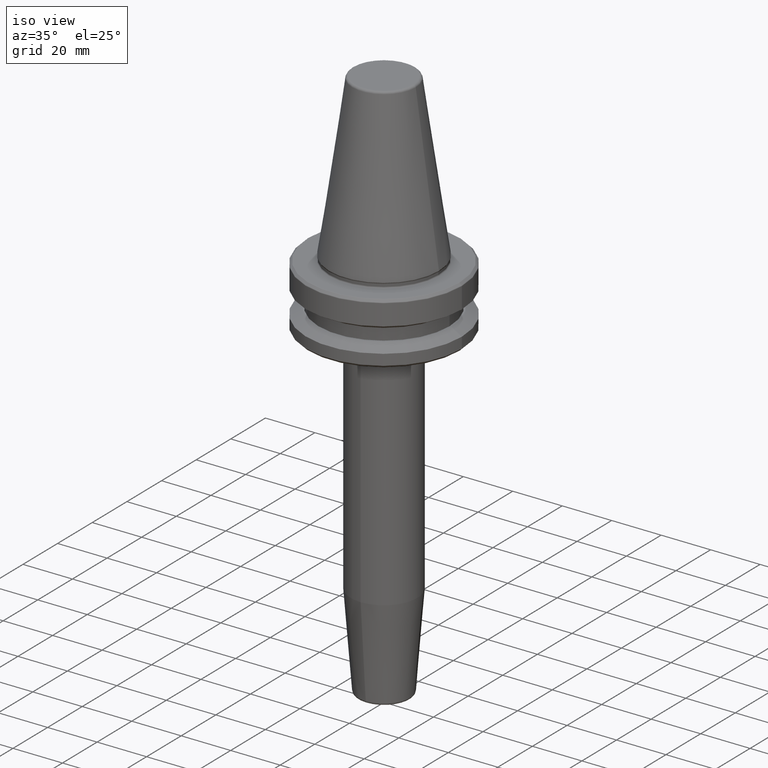
[diagram: clean part render]
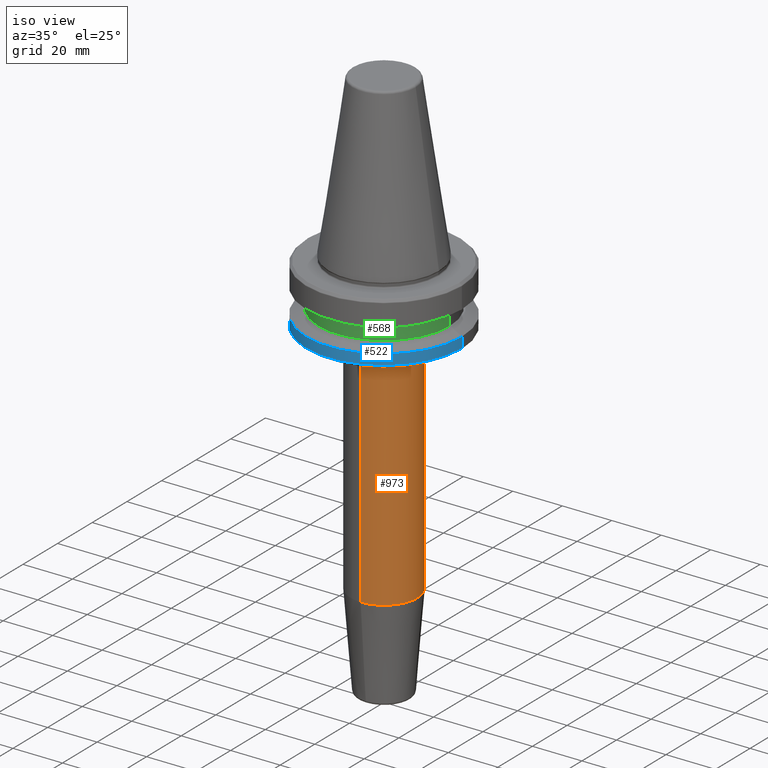
[diagram: same view with three faces highlighted in distinct colors, each labeled with its STEP entity id]
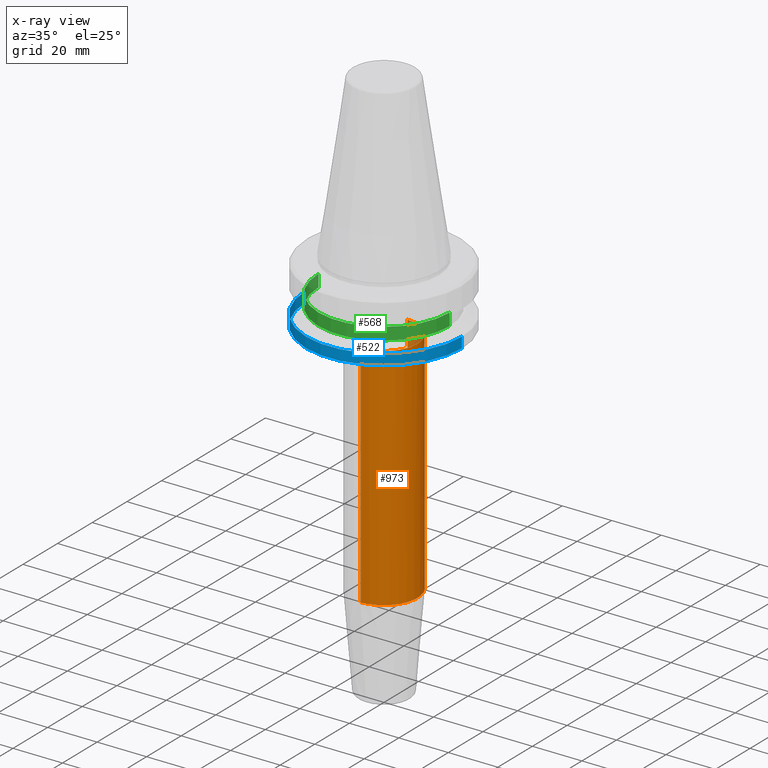
[diagram: x-ray of the same camera — body ghosted, the three highlighted faces saturated]
A machine part, iso view with three faces highlighted in distinct colors.
The next image is the same camera in x-ray (body ghosted, the three faces saturated) — at least one of them is partly hidden behind the body in this view.
Their STEP definitions:

[orange] entity #973 — the highlighted cylindrical surface (partial cylindrical patch) has radius 13.5 mm, axis along (-0, 0, -1).
#27 = CIRCLE ( 'NONE', #801, 13.49999999999999800 ) ;
#28 = DIRECTION ( 'NONE',  ( -0.0000000000000000000, 7.550453949630297200E-017, -1.000000000000000000 ) ) ;
#52 = AXIS2_PLACEMENT_3D ( 'NONE', #449, #1244, #1151 ) ;
#73 = CARTESIAN_POINT ( 'NONE',  ( 1.653273178848926700E-015, -13.49999999999998800, -160.0000000000000000 ) ) ;
#102 = LINE ( 'NONE', #992, #870 ) ;
#141 = VERTEX_POINT ( 'NONE', #726 ) ;
#146 = ORIENTED_EDGE ( 'NONE', *, *, #894, .F. ) ;
#204 = VERTEX_POINT ( 'NONE', #758 ) ;
#222 = DIRECTION ( 'NONE',  ( 0.0000000000000000000, 1.000000000000000000, 0.0000000000000000000 ) ) ;
#329 = DIRECTION ( 'NONE',  ( -0.0000000000000000000, 7.550453949630297200E-017, -1.000000000000000000 ) ) ;
#352 = DIRECTION ( 'NONE',  ( -0.0000000000000000000, 7.550453949630297200E-017, -1.000000000000000000 ) ) ;
#362 = CIRCLE ( 'NONE', #52, 13.49999999999999800 ) ;
#367 = DIRECTION ( 'NONE',  ( 0.0000000000000000000, 0.0000000000000000000, -1.000000000000000000 ) ) ;
#400 = VERTEX_POINT ( 'NONE', #1277 ) ;
#413 = CARTESIAN_POINT ( 'NONE',  ( 0.0000000000000000000, 13.49999999999999800, -28.99999999999999600 ) ) ;
#428 = ORIENTED_EDGE ( 'NONE', *, *, #1101, .T. ) ;
#449 = CARTESIAN_POINT ( 'NONE',  ( 0.0000000000000000000, 1.510090789926056700E-016, -28.99999999999999600 ) ) ;
#463 = CARTESIAN_POINT ( 'NONE',  ( 0.0000000000000000000, 7.163975340955943400E-015, -121.8813857914691400 ) ) ;
#497 = DIRECTION ( 'NONE',  ( -0.0000000000000000000, 7.550453949630297200E-017, -1.000000000000000000 ) ) ;
#510 = VERTEX_POINT ( 'NONE', #1061 ) ;
#606 = AXIS2_PLACEMENT_3D ( 'NONE', #463, #329, #1067 ) ;
#613 = VECTOR ( 'NONE', #497, 1000.000000000000000 ) ;
#629 = EDGE_CURVE ( 'NONE', #988, #400, #362, .T. ) ;
#635 = CYLINDRICAL_SURFACE ( 'NONE', #1154, 13.49999999999999800 ) ;
#638 = EDGE_CURVE ( 'NONE', #988, #141, #102, .T. ) ;
#714 = EDGE_LOOP ( 'NONE', ( #1197, #428, #1050, #146, #828 ) ) ;
#726 = CARTESIAN_POINT ( 'NONE',  ( 1.653273178848926700E-015, 13.50000000000000500, -121.8813857914691400 ) ) ;
#758 = CARTESIAN_POINT ( 'NONE',  ( 0.0000000000000000000, -13.49999999999999100, -121.8813857914691400 ) ) ;
#801 = AXIS2_PLACEMENT_3D ( 'NONE', #931, #367, #969 ) ;
#828 = ORIENTED_EDGE ( 'NONE', *, *, #638, .F. ) ;
#870 = VECTOR ( 'NONE', #352, 1000.000000000000000 ) ;
#894 = EDGE_CURVE ( 'NONE', #141, #204, #1245, .T. ) ;
#926 = CARTESIAN_POINT ( 'NONE',  ( 0.0000000000000000000, 1.004210375300829600E-014, -160.0000000000000000 ) ) ;
#931 = CARTESIAN_POINT ( 'NONE',  ( 0.0000000000000000000, 1.510090789926056700E-016, -28.99999999999999600 ) ) ;
#947 = EDGE_CURVE ( 'NONE', #510, #204, #1186, .T. ) ;
#949 = FACE_OUTER_BOUND ( 'NONE', #714, .T. ) ;
#969 = DIRECTION ( 'NONE',  ( -1.000000000000000000, 0.0000000000000000000, 0.0000000000000000000 ) ) ;
#973 = ADVANCED_FACE ( 'NONE', ( #949 ), #635, .T. ) ;
#988 = VERTEX_POINT ( 'NONE', #413 ) ;
#992 = CARTESIAN_POINT ( 'NONE',  ( 0.0000000000000000000, 13.50000000000000900, -160.0000000000000000 ) ) ;
#1050 = ORIENTED_EDGE ( 'NONE', *, *, #947, .T. ) ;
#1061 = CARTESIAN_POINT ( 'NONE',  ( 1.653273178848927100E-015, -13.49999999999999800, -28.99999999999999600 ) ) ;
#1067 = DIRECTION ( 'NONE',  ( 0.0000000000000000000, 1.000000000000000000, 0.0000000000000000000 ) ) ;
#1101 = EDGE_CURVE ( 'NONE', #400, #510, #27, .T. ) ;
#1151 = DIRECTION ( 'NONE',  ( -1.000000000000000000, 0.0000000000000000000, 0.0000000000000000000 ) ) ;
#1154 = AXIS2_PLACEMENT_3D ( 'NONE', #926, #28, #222 ) ;
#1186 = LINE ( 'NONE', #73, #613 ) ;
#1197 = ORIENTED_EDGE ( 'NONE', *, *, #629, .T. ) ;
#1244 = DIRECTION ( 'NONE',  ( 0.0000000000000000000, 0.0000000000000000000, -1.000000000000000000 ) ) ;
#1245 = CIRCLE ( 'NONE', #606, 13.49999999999999800 ) ;
#1277 = CARTESIAN_POINT ( 'NONE',  ( 13.49999999999999800, 1.926746937756267500E-015, -28.99999999999999600 ) ) ;

[blue] entity #522 — the highlighted cylindrical surface (partial cylindrical patch) has radius 31.5 mm, axis along (-0, -0, 1).
#8 = EDGE_CURVE ( 'NONE', #447, #363, #96, .T. ) ;
#96 = CIRCLE ( 'NONE', #163, 31.50000000000000000 ) ;
#142 = VECTOR ( 'NONE', #1103, 1000.000000000000000 ) ;
#163 = AXIS2_PLACEMENT_3D ( 'NONE', #263, #1183, #624 ) ;
#184 = CARTESIAN_POINT ( 'NONE',  ( 0.0000000000000000000, 0.0000000000000000000, 69.75694866325665100 ) ) ;
#214 = FACE_OUTER_BOUND ( 'NONE', #1079, .T. ) ;
#253 = ORIENTED_EDGE ( 'NONE', *, *, #8, .F. ) ;
#263 = CARTESIAN_POINT ( 'NONE',  ( 0.0000000000000000000, 0.0000000000000000000, -21.60014200631675500 ) ) ;
#290 = DIRECTION ( 'NONE',  ( 1.000000000000000000, 0.0000000000000000000, 0.0000000000000000000 ) ) ;
#291 = VERTEX_POINT ( 'NONE', #375 ) ;
#292 = EDGE_CURVE ( 'NONE', #345, #447, #1169, .T. ) ;
#299 = EDGE_CURVE ( 'NONE', #291, #363, #401, .T. ) ;
#345 = VERTEX_POINT ( 'NONE', #1222 ) ;
#363 = VERTEX_POINT ( 'NONE', #1102 ) ;
#375 = CARTESIAN_POINT ( 'NONE',  ( 31.50000000000000000, 0.0000000000000000000, -25.83431457505076900 ) ) ;
#401 = LINE ( 'NONE', #877, #1165 ) ;
#423 = DIRECTION ( 'NONE',  ( 1.000000000000000000, 0.0000000000000000000, 0.0000000000000000000 ) ) ;
#447 = VERTEX_POINT ( 'NONE', #1092 ) ;
#500 = ORIENTED_EDGE ( 'NONE', *, *, #707, .T. ) ;
#507 = ORIENTED_EDGE ( 'NONE', *, *, #299, .T. ) ;
#522 = ADVANCED_FACE ( 'NONE', ( #214 ), #962, .T. ) ;
#530 = DIRECTION ( 'NONE',  ( -0.0000000000000000000, -0.0000000000000000000, 1.000000000000000000 ) ) ;
#538 = CIRCLE ( 'NONE', #575, 31.50000000000000000 ) ;
#575 = AXIS2_PLACEMENT_3D ( 'NONE', #739, #530, #423 ) ;
#624 = DIRECTION ( 'NONE',  ( 1.000000000000000000, 0.0000000000000000000, 0.0000000000000000000 ) ) ;
#634 = DIRECTION ( 'NONE',  ( -0.0000000000000000000, -0.0000000000000000000, 1.000000000000000000 ) ) ;
#707 = EDGE_CURVE ( 'NONE', #345, #291, #538, .T. ) ;
#739 = CARTESIAN_POINT ( 'NONE',  ( 0.0000000000000000000, 0.0000000000000000000, -25.83431457505076900 ) ) ;
#877 = CARTESIAN_POINT ( 'NONE',  ( 31.50000000000000000, 0.0000000000000000000, 69.75694866325665100 ) ) ;
#932 = CARTESIAN_POINT ( 'NONE',  ( -31.50000000000000000, 3.857637417314162700E-015, 69.75694866325665100 ) ) ;
#962 = CYLINDRICAL_SURFACE ( 'NONE', #1010, 31.50000000000000000 ) ;
#1010 = AXIS2_PLACEMENT_3D ( 'NONE', #184, #634, #290 ) ;
#1079 = EDGE_LOOP ( 'NONE', ( #1153, #500, #507, #253 ) ) ;
#1092 = CARTESIAN_POINT ( 'NONE',  ( -31.50000000000000000, 3.857637417314162700E-015, -21.60014200631675500 ) ) ;
#1102 = CARTESIAN_POINT ( 'NONE',  ( 31.50000000000000000, 0.0000000000000000000, -21.60014200631675500 ) ) ;
#1103 = DIRECTION ( 'NONE',  ( -0.0000000000000000000, -0.0000000000000000000, 1.000000000000000000 ) ) ;
#1149 = DIRECTION ( 'NONE',  ( -0.0000000000000000000, -0.0000000000000000000, 1.000000000000000000 ) ) ;
#1153 = ORIENTED_EDGE ( 'NONE', *, *, #292, .F. ) ;
#1165 = VECTOR ( 'NONE', #1149, 1000.000000000000000 ) ;
#1169 = LINE ( 'NONE', #932, #142 ) ;
#1183 = DIRECTION ( 'NONE',  ( -0.0000000000000000000, -0.0000000000000000000, 1.000000000000000000 ) ) ;
#1222 = CARTESIAN_POINT ( 'NONE',  ( -31.50000000000000000, 3.857637417314162700E-015, -25.83431457505076900 ) ) ;

[green] entity #568 — the highlighted cylindrical surface (partial cylindrical patch) has radius 26.5 mm, axis along (-0, -0, 1).
#25 = CIRCLE ( 'NONE', #1118, 26.50000000000000000 ) ;
#56 = CARTESIAN_POINT ( 'NONE',  ( 0.0000000000000000000, 0.0000000000000000000, -19.10000000000000500 ) ) ;
#179 = LINE ( 'NONE', #866, #407 ) ;
#227 = ORIENTED_EDGE ( 'NONE', *, *, #997, .F. ) ;
#239 = DIRECTION ( 'NONE',  ( 1.000000000000000000, 0.0000000000000000000, 0.0000000000000000000 ) ) ;
#303 = EDGE_LOOP ( 'NONE', ( #1014, #340, #1099, #227 ) ) ;
#323 = DIRECTION ( 'NONE',  ( -0.0000000000000000000, -0.0000000000000000000, 1.000000000000000000 ) ) ;
#340 = ORIENTED_EDGE ( 'NONE', *, *, #785, .T. ) ;
#381 = CIRCLE ( 'NONE', #1217, 26.50000000000000000 ) ;
#394 = CYLINDRICAL_SURFACE ( 'NONE', #1265, 26.50000000000000000 ) ;
#407 = VECTOR ( 'NONE', #559, 1000.000000000000000 ) ;
#421 = FACE_OUTER_BOUND ( 'NONE', #303, .T. ) ;
#479 = VERTEX_POINT ( 'NONE', #939 ) ;
#483 = LINE ( 'NONE', #688, #989 ) ;
#524 = CARTESIAN_POINT ( 'NONE',  ( -26.50000000000000000, 3.245314017740485800E-015, -14.10000000000000100 ) ) ;
#527 = CARTESIAN_POINT ( 'NONE',  ( 26.50000000000000000, 0.0000000000000000000, -19.10000000000000500 ) ) ;
#559 = DIRECTION ( 'NONE',  ( -0.0000000000000000000, -0.0000000000000000000, 1.000000000000000000 ) ) ;
#568 = ADVANCED_FACE ( 'NONE', ( #421 ), #394, .T. ) ;
#688 = CARTESIAN_POINT ( 'NONE',  ( 26.50000000000000000, 0.0000000000000000000, 69.75694866325665100 ) ) ;
#709 = DIRECTION ( 'NONE',  ( 1.000000000000000000, 0.0000000000000000000, 0.0000000000000000000 ) ) ;
#785 = EDGE_CURVE ( 'NONE', #847, #1025, #25, .T. ) ;
#794 = VERTEX_POINT ( 'NONE', #524 ) ;
#847 = VERTEX_POINT ( 'NONE', #1240 ) ;
#862 = EDGE_CURVE ( 'NONE', #1025, #479, #483, .T. ) ;
#866 = CARTESIAN_POINT ( 'NONE',  ( -26.50000000000000000, 3.245314017740485800E-015, 69.75694866325665100 ) ) ;
#881 = DIRECTION ( 'NONE',  ( -0.0000000000000000000, -0.0000000000000000000, 1.000000000000000000 ) ) ;
#904 = DIRECTION ( 'NONE',  ( 1.000000000000000000, 0.0000000000000000000, 0.0000000000000000000 ) ) ;
#906 = DIRECTION ( 'NONE',  ( -0.0000000000000000000, -0.0000000000000000000, 1.000000000000000000 ) ) ;
#939 = CARTESIAN_POINT ( 'NONE',  ( 26.50000000000000000, 0.0000000000000000000, -14.10000000000000100 ) ) ;
#989 = VECTOR ( 'NONE', #906, 1000.000000000000000 ) ;
#997 = EDGE_CURVE ( 'NONE', #794, #479, #381, .T. ) ;
#1014 = ORIENTED_EDGE ( 'NONE', *, *, #1206, .F. ) ;
#1025 = VERTEX_POINT ( 'NONE', #527 ) ;
#1033 = CARTESIAN_POINT ( 'NONE',  ( 0.0000000000000000000, 0.0000000000000000000, 69.75694866325665100 ) ) ;
#1099 = ORIENTED_EDGE ( 'NONE', *, *, #862, .T. ) ;
#1118 = AXIS2_PLACEMENT_3D ( 'NONE', #56, #323, #904 ) ;
#1120 = CARTESIAN_POINT ( 'NONE',  ( 0.0000000000000000000, 0.0000000000000000000, -14.10000000000000100 ) ) ;
#1206 = EDGE_CURVE ( 'NONE', #847, #794, #179, .T. ) ;
#1211 = DIRECTION ( 'NONE',  ( -0.0000000000000000000, -0.0000000000000000000, 1.000000000000000000 ) ) ;
#1217 = AXIS2_PLACEMENT_3D ( 'NONE', #1120, #1211, #709 ) ;
#1240 = CARTESIAN_POINT ( 'NONE',  ( -26.50000000000000000, 3.245314017740485800E-015, -19.10000000000000500 ) ) ;
#1265 = AXIS2_PLACEMENT_3D ( 'NONE', #1033, #881, #239 ) ;